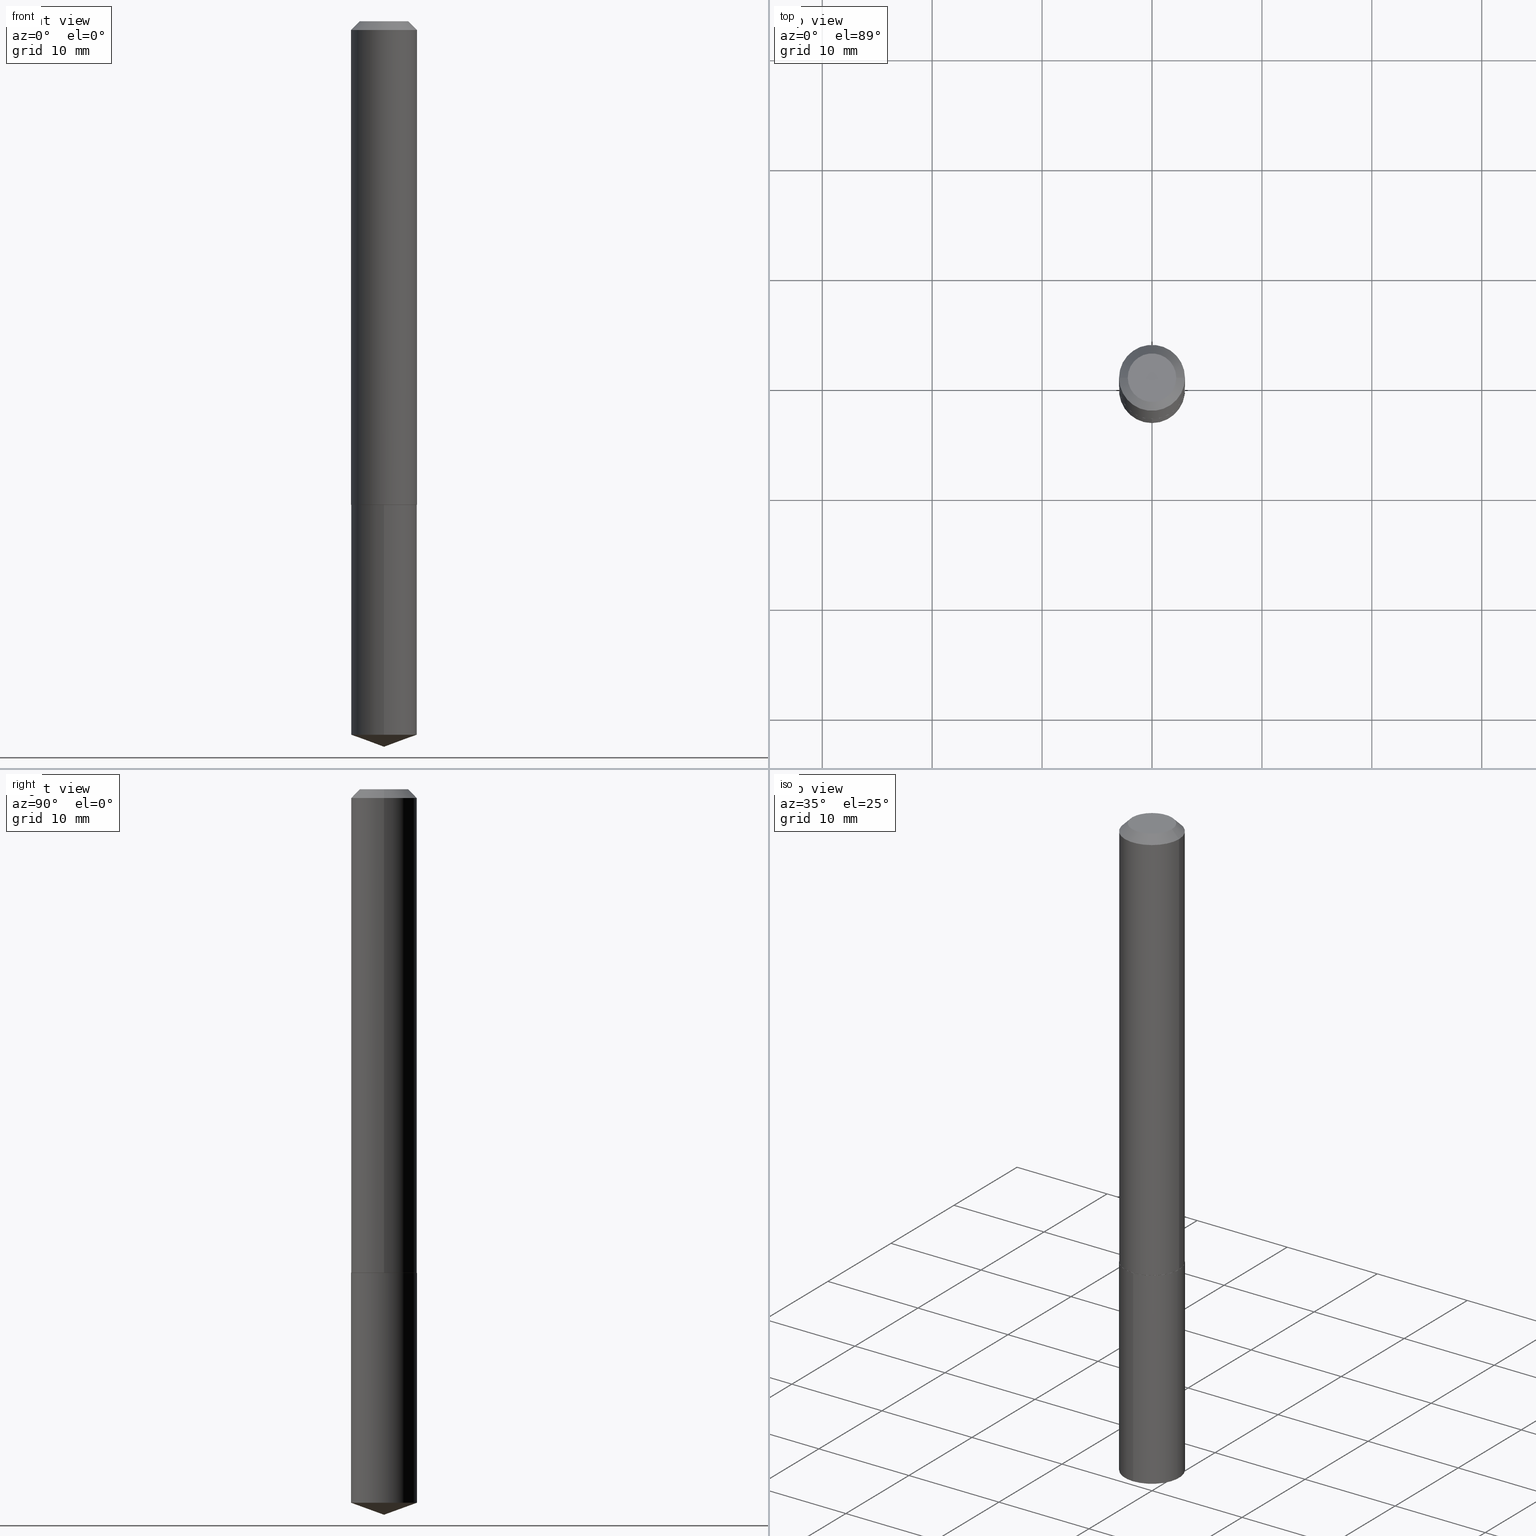
[diagram: canonical four-view strip — front | top / right | iso, engineering-drawing reading convention]
A machine part, canonical four-view strip (front | top / right | iso — engineering-drawing reading convention). The complete STEP part file that produces these views, byte-faithful:
ISO-10303-21;
HEADER;
FILE_DESCRIPTION (( 'STEP AP203' ),
    '1' );
FILE_NAME ('66021.STEP',
    '2024-04-23T12:11:26',
    ( '' ),
    ( '' ),
    'SwSTEP 2.0',
    'SolidWorks 2023',
    '' );
FILE_SCHEMA (( 'CONFIG_CONTROL_DESIGN' ));
ENDSEC;

DATA;
#1 = LINE ( 'NONE', #140, #255 ) ;
#2 = CARTESIAN_POINT ( 'NONE',  ( 6.355996384529325235E-29, -9.069844593061400986E-15, -2.598399999999999821 ) ) ;
#3 = CYLINDRICAL_SURFACE ( 'NONE', #214, 0.1180999999999999966 ) ;
#4 = DIRECTION ( 'NONE',  ( -2.445468806185136597E-29, 3.491481338843145583E-15, 1.000000000000000000 ) ) ;
#5 = AXIS2_PLACEMENT_3D ( 'NONE', #253, #105, #300 ) ;
#6 = CC_DESIGN_APPROVAL ( #198, ( #383 ) ) ;
#7 = ORIENTED_EDGE ( 'NONE', *, *, #218, .T. ) ;
#8 = DIRECTION ( 'NONE',  ( -2.445468806185136877E-29, 3.491481338843145188E-15, 1.000000000000000000 ) ) ;
#9 = DIRECTION ( 'NONE',  ( 2.446119298233268337E-29, -3.490549797206512511E-15, -1.000000000000000000 ) ) ;
#10 = EDGE_CURVE ( 'NONE', #238, #62, #95, .T. ) ;
#11 = VERTEX_POINT ( 'NONE', #246 ) ;
#12 = MECHANICAL_CONTEXT ( 'NONE', #98, 'mechanical' ) ;
#13 = VERTEX_POINT ( 'NONE', #215 ) ;
#14 = APPROVAL_ROLE ( '' ) ;
#15 = DIRECTION ( 'NONE',  ( 1.000000000000000000, -6.982962677686266711E-15, 4.876232708448512900E-29 ) ) ;
#16 = EDGE_CURVE ( 'NONE', #240, #11, #168, .T. ) ;
#17 = PERSON_AND_ORGANIZATION ( #346, #112 ) ;
#18 = ORIENTED_EDGE ( 'NONE', *, *, #121, .T. ) ;
#19 = CARTESIAN_POINT ( 'NONE',  ( -8.246878922347056641E-16, -0.1181000000000060474, -1.732199999999999074 ) ) ;
#20 = CALENDAR_DATE ( 2024, 23, 4 ) ;
#21 = VERTEX_POINT ( 'NONE', #213 ) ;
#22 = EDGE_LOOP ( 'NONE', ( #109, #388, #381, #120 ) ) ;
#23 = ADVANCED_FACE ( 'NONE', ( #296 ), #389, .T. ) ;
#24 = ORIENTED_EDGE ( 'NONE', *, *, #92, .F. ) ;
#25 = FACE_OUTER_BOUND ( 'NONE', #129, .T. ) ;
#26 = AXIS2_PLACEMENT_3D ( 'NONE', #161, #137, #43 ) ;
#27 = EDGE_CURVE ( 'NONE', #78, #241, #337, .T. ) ;
#28 = ORIENTED_EDGE ( 'NONE', *, *, #10, .F. ) ;
#29 = PRODUCT_RELATED_PRODUCT_CATEGORY ( 'detail', '', ( #118 ) ) ;
#30 = CARTESIAN_POINT ( 'NONE',  ( 7.642090019328602662E-31, -1.091087918388490267E-16, -0.03125000000000020817 ) ) ;
#31 = DIRECTION ( 'NONE',  ( 1.000000000000000000, -6.982962677686266711E-15, 0.000000000000000000 ) ) ;
#32 = ADVANCED_BREP_SHAPE_REPRESENTATION ( '66021', ( #130, #373, #147 ), #295 ) ;
#33 = CONICAL_SURFACE ( 'NONE', #207, 0.1181000000000001909, 0.7853981633978751598 ) ;
#34 = APPROVAL_PERSON_ORGANIZATION ( #17, #198, #14 ) ;
#35 = DIRECTION ( 'NONE',  ( -2.446119298233268617E-29, 3.490549797206512511E-15, 1.000000000000000000 ) ) ;
#36 = UNCERTAINTY_MEASURE_WITH_UNIT (LENGTH_MEASURE( 1.000000000000000082E-05 ), #40, 'distance_accuracy_value', 'NONE');
#37 = EDGE_CURVE ( 'NONE', #78, #65, #248, .T. ) ;
#38 = FACE_OUTER_BOUND ( 'NONE', #49, .T. ) ;
#39 = DIRECTION ( 'NONE',  ( 1.000000000000000000, -6.982962677686269077E-15, 0.000000000000000000 ) ) ;
#40 =( CONVERSION_BASED_UNIT ( 'INCH', #250 ) LENGTH_UNIT ( ) NAMED_UNIT ( #110 ) );
#41 = CARTESIAN_POINT ( 'NONE',  ( 7.642090019328602662E-31, -1.091087918388490267E-16, -0.03125000000000020817 ) ) ;
#42 = ORIENTED_EDGE ( 'NONE', *, *, #99, .T. ) ;
#43 = DIRECTION ( 'NONE',  ( -6.982962677686265922E-15, -1.000000000000000000, 3.475157955500679982E-15 ) ) ;
#44 = EDGE_CURVE ( 'NONE', #65, #78, #354, .T. ) ;
#45 = DIRECTION ( 'NONE',  ( 2.438088387897960049E-29, -3.491481338843145188E-15, -1.000000000000000000 ) ) ;
#46 = AXIS2_PLACEMENT_3D ( 'NONE', #126, #209, #15 ) ;
#47 = ORIENTED_EDGE ( 'NONE', *, *, #361, .T. ) ;
#48 = CYLINDRICAL_SURFACE ( 'NONE', #5, 0.1181000000000001077 ) ;
#49 = EDGE_LOOP ( 'NONE', ( #385, #42, #264, #93 ) ) ;
#50 = DIRECTION ( 'NONE',  ( -1.000000000000000000, 6.982962677686266711E-15, 0.000000000000000000 ) ) ;
#51 = ORIENTED_EDGE ( 'NONE', *, *, #106, .T. ) ;
#52 = PERSON_AND_ORGANIZATION ( #346, #112 ) ;
#53 = CIRCLE ( 'NONE', #227, 0.1180999999999999966 ) ;
#54 = AXIS2_PLACEMENT_3D ( 'NONE', #306, #190, #197 ) ;
#55 = EDGE_CURVE ( 'NONE', #13, #78, #312, .T. ) ;
#56 = DIRECTION ( 'NONE',  ( -6.561838499445211896E-15, -0.9396926207859086499, 0.3420201433256677137 ) ) ;
#57 = PRODUCT_DEFINITION_SHAPE ( 'NONE', 'NONE',  #156 ) ;
#58 = EDGE_CURVE ( 'NONE', #62, #21, #386, .T. ) ;
#59 = AXIS2_PLACEMENT_3D ( 'NONE', #30, #272, #50 ) ;
#60 = APPROVAL_PERSON_ORGANIZATION ( #52, #135, #204 ) ;
#61 = DIRECTION ( 'NONE',  ( 2.445468806185136597E-29, -3.491481338843145583E-15, -1.000000000000000000 ) ) ;
#62 = VERTEX_POINT ( 'NONE', #160 ) ;
#63 = DIRECTION ( 'NONE',  ( 0.7071067811868493314, -2.468850131085418026E-15, 0.7071067811862457031 ) ) ;
#64 = AXIS2_PLACEMENT_3D ( 'NONE', #73, #108, #358 ) ;
#65 = VERTEX_POINT ( 'NONE', #387 ) ;
#66 = DIRECTION ( 'NONE',  ( 1.000000000000000000, -6.982962677686266711E-15, 4.876232708448512900E-29 ) ) ;
#67 = AXIS2_PLACEMENT_3D ( 'NONE', #97, #131, #66 ) ;
#68 = DIRECTION ( 'NONE',  ( -2.445468806185136877E-29, 3.491481338843145188E-15, 1.000000000000000000 ) ) ;
#69 = PLANE ( 'NONE',  #220 ) ;
#70 = FACE_OUTER_BOUND ( 'NONE', #364, .T. ) ;
#71 = DIRECTION ( 'NONE',  ( -6.982962677686265922E-15, -1.000000000000000000, 4.626330217890369336E-15 ) ) ;
#72 = ORIENTED_EDGE ( 'NONE', *, *, #172, .F. ) ;
#73 = CARTESIAN_POINT ( 'NONE',  ( 0.000000000000000000, 0.000000000000000000, 0.000000000000000000 ) ) ;
#74 = AXIS2_PLACEMENT_3D ( 'NONE', #169, #4, #31 ) ;
#75 = ORIENTED_EDGE ( 'NONE', *, *, #361, .F. ) ;
#76 = PERSON_AND_ORGANIZATION ( #346, #112 ) ;
#77 = APPROVAL_ROLE ( '' ) ;
#78 = VERTEX_POINT ( 'NONE', #353 ) ;
#79 = DIRECTION ( 'NONE',  ( -2.445468806185136597E-29, 3.491481338843145583E-15, 1.000000000000000000 ) ) ;
#80 = ORIENTED_EDGE ( 'NONE', *, *, #99, .F. ) ;
#81 = DATE_AND_TIME ( #284, #260 ) ;
#82 = VECTOR ( 'NONE', #301, 39.37007874015748143 ) ;
#83 = AXIS2_PLACEMENT_3D ( 'NONE', #193, #100, #305 ) ;
#84 = SHAPE_DEFINITION_REPRESENTATION ( #57, #32 ) ;
#85 = DIRECTION ( 'NONE',  ( -2.446119298233268617E-29, 3.490549797206512117E-15, 1.000000000000000000 ) ) ;
#86 = LINE ( 'NONE', #154, #332 ) ;
#87 = EDGE_CURVE ( 'NONE', #11, #241, #136, .T. ) ;
#88 = COORDINATED_UNIVERSAL_TIME_OFFSET ( 5, 0, .BEHIND. ) ;
#89 = APPROVAL ( #343, 'UNSPECIFIED' ) ;
#90 = CIRCLE ( 'NONE', #242, 0.1180999999999999966 ) ;
#91 = DIRECTION ( 'NONE',  ( -1.000000000000000000, 6.982962677686266711E-15, 0.000000000000000000 ) ) ;
#92 = EDGE_CURVE ( 'NONE', #241, #125, #90, .T. ) ;
#93 = ORIENTED_EDGE ( 'NONE', *, *, #55, .F. ) ;
#94 = CARTESIAN_POINT ( 'NONE',  ( -0.08684999999999999665, 6.610247044764755977E-16, 1.206277097155711909E-18 ) ) ;
#95 = LINE ( 'NONE', #158, #159 ) ;
#96 = CIRCLE ( 'NONE', #54, 0.1180999999999999966 ) ;
#97 = CARTESIAN_POINT ( 'NONE',  ( -2.949913012720688878E-47, 4.211693974208522336E-33, 1.206277097160143859E-18 ) ) ;
#98 = APPLICATION_CONTEXT ( 'configuration controlled 3d designs of mechanical parts and assemblies' ) ;
#99 = EDGE_CURVE ( 'NONE', #347, #65, #86, .T. ) ;
#100 = DIRECTION ( 'NONE',  ( -2.446119298233268617E-29, 3.490549797206512117E-15, 1.000000000000000000 ) ) ;
#101 = DIRECTION ( 'NONE',  ( -2.445468806185136597E-29, 3.491481338843145583E-15, 1.000000000000000000 ) ) ;
#102 = AXIS2_PLACEMENT_3D ( 'NONE', #157, #374, #233 ) ;
#103 = LOCAL_TIME ( 8, 11, 26.00000000000000000, #287 ) ;
#104 = CARTESIAN_POINT ( 'NONE',  ( 4.236041066073892487E-29, -6.047943975144095988E-15, -1.732199999999999518 ) ) ;
#105 = DIRECTION ( 'NONE',  ( -2.445468806185136597E-29, 3.491481338843145583E-15, 1.000000000000000000 ) ) ;
#106 = EDGE_CURVE ( 'NONE', #238, #226, #124, .T. ) ;
#107 = DIRECTION ( 'NONE',  ( -6.982962677686265922E-15, -1.000000000000000000, 3.475157955500679982E-15 ) ) ;
#108 = DIRECTION ( 'NONE',  ( -2.445468806185136597E-29, 3.491481338843145583E-15, 1.000000000000000000 ) ) ;
#109 = ORIENTED_EDGE ( 'NONE', *, *, #218, .F. ) ;
#110 = DIMENSIONAL_EXPONENTS ( 1.000000000000000000, 0.000000000000000000, 0.000000000000000000, 0.000000000000000000, 0.000000000000000000, 0.000000000000000000, 0.000000000000000000 ) ;
#111 = APPROVAL_STATUS ( 'not_yet_approved' ) ;
#112 = ORGANIZATION ( 'UNSPECIFIED', 'UNSPECIFIED', '' ) ;
#113 = VERTEX_POINT ( 'NONE', #19 ) ;
#114 = DATE_AND_TIME ( #199, #290 ) ;
#115 = PERSON_AND_ORGANIZATION ( #346, #112 ) ;
#116 = DIRECTION ( 'NONE',  ( -0.7071067811868493314, 7.493145998871445944E-15, 0.7071067811862457031 ) ) ;
#117 = DATE_AND_TIME ( #20, #275 ) ;
#118 = PRODUCT ( '66021', '66021', '', ( #12 ) ) ;
#119 = VECTOR ( 'NONE', #247, 39.37007874015748143 ) ;
#120 = ORIENTED_EDGE ( 'NONE', *, *, #384, .F. ) ;
#121 = EDGE_CURVE ( 'NONE', #21, #113, #382, .T. ) ;
#122 = PERSON_AND_ORGANIZATION_ROLE ( 'creator' ) ;
#123 = ORIENTED_EDGE ( 'NONE', *, *, #16, .T. ) ;
#124 = LINE ( 'NONE', #340, #254 ) ;
#125 = VERTEX_POINT ( 'NONE', #132 ) ;
#126 = CARTESIAN_POINT ( 'NONE',  ( -2.949913012720688878E-47, 4.211693974208522336E-33, 1.206277097160143859E-18 ) ) ;
#127 = ADVANCED_FACE ( 'NONE', ( #38 ), #33, .T. ) ;
#128 = CARTESIAN_POINT ( 'NONE',  ( 8.391509709327204997E-16, 0.1180999999999939598, -1.732200000000000184 ) ) ;
#129 = EDGE_LOOP ( 'NONE', ( #319, #379 ) ) ;
#130 = MANIFOLD_SOLID_BREP ( 'Body-Move/Copy2[1]', #307 ) ;
#131 = DIRECTION ( 'NONE',  ( -2.445468806185136597E-29, 3.491481338843145583E-15, 1.000000000000000000 ) ) ;
#132 = CARTESIAN_POINT ( 'NONE',  ( -0.1180999999999999966, -2.238502542224082018E-15, -0.03125000000000020817 ) ) ;
#133 = DIRECTION ( 'NONE',  ( 1.000000000000000000, -6.982962677686266711E-15, 0.000000000000000000 ) ) ;
#134 = ORIENTED_EDGE ( 'NONE', *, *, #243, .F. ) ;
#135 = APPROVAL ( #182, 'UNSPECIFIED' ) ;
#136 = LINE ( 'NONE', #164, #82 ) ;
#137 = DIRECTION ( 'NONE',  ( -2.446119298233268617E-29, 3.490549797206512117E-15, 1.000000000000000000 ) ) ;
#138 = DIRECTION ( 'NONE',  ( -2.446119298233268617E-29, 3.490549797206512117E-15, 1.000000000000000000 ) ) ;
#139 = AXIS2_PLACEMENT_3D ( 'NONE', #216, #330, #107 ) ;
#140 = CARTESIAN_POINT ( 'NONE',  ( -8.246878922347056641E-16, -0.1181000000000060474, -1.732199999999999074 ) ) ;
#141 = DESIGN_CONTEXT ( 'detailed design', #355, 'design' ) ;
#142 = CYLINDRICAL_SURFACE ( 'NONE', #83, 0.1180999999999999966 ) ;
#143 = COORDINATED_UNIVERSAL_TIME_OFFSET ( 5, 0, .BEHIND. ) ;
#144 = CARTESIAN_POINT ( 'NONE',  ( 0.1181000000000001077, -8.246878922347488542E-16, 5.758764772215005345E-30 ) ) ;
#145 = AXIS2_PLACEMENT_3D ( 'NONE', #176, #270, #273 ) ;
#146 = APPROVAL_DATE_TIME ( #117, #198 ) ;
#147 = AXIS2_PLACEMENT_3D ( 'NONE', #265, #285, #263 ) ;
#148 = APPLICATION_PROTOCOL_DEFINITION ( 'international standard', 'config_control_design', 1994, #355 ) ;
#149 = DIRECTION ( 'NONE',  ( 1.000000000000000000, -6.982962677686269077E-15, 0.000000000000000000 ) ) ;
#150 = SECURITY_CLASSIFICATION_LEVEL ( 'unclassified' ) ;
#151 = CALENDAR_DATE ( 2024, 23, 4 ) ;
#152 = VECTOR ( 'NONE', #8, 39.37007874015748143 ) ;
#153 = APPROVAL_PERSON_ORGANIZATION ( #234, #89, #77 ) ;
#154 = CARTESIAN_POINT ( 'NONE',  ( -0.1181000000000001909, -5.207047263541994710E-15, -1.731699999999999795 ) ) ;
#155 = EDGE_LOOP ( 'NONE', ( #123, #205 ) ) ;
#156 = PRODUCT_DEFINITION ( 'UNKNOWN', '', #383, #141 ) ;
#157 = CARTESIAN_POINT ( 'NONE',  ( 4.236041066073891926E-29, -6.047943975144094411E-15, -1.732199999999999296 ) ) ;
#158 = CARTESIAN_POINT ( 'NONE',  ( 6.356016145631198819E-29, -9.069844593061400986E-15, -2.598399999999999821 ) ) ;
#159 = VECTOR ( 'NONE', #271, 39.37007874015748854 ) ;
#160 = CARTESIAN_POINT ( 'NONE',  ( 8.391509709327407143E-16, 0.1180999999999910732, -2.555415115333162568 ) ) ;
#161 = CARTESIAN_POINT ( 'NONE',  ( -8.994903977705899431E-28, 1.283517621529767415E-13, 36.77167874015748339 ) ) ;
#162 = CARTESIAN_POINT ( 'NONE',  ( 4.234818331670800246E-29, -6.046198234474674485E-15, -1.731699999999999795 ) ) ;
#163 =( NAMED_UNIT ( * ) PLANE_ANGLE_UNIT ( ) SI_UNIT ( $, .RADIAN. ) );
#164 = CARTESIAN_POINT ( 'NONE',  ( 0.1180999999999999966, -9.193336053756670343E-16, -0.03125000000000020817 ) ) ;
#165 = LINE ( 'NONE', #222, #259 ) ;
#166 = EDGE_CURVE ( 'NONE', #113, #21, #53, .T. ) ;
#167 = DIRECTION ( 'NONE',  ( -2.446119298233268617E-29, 3.490549797206512117E-15, 1.000000000000000000 ) ) ;
#168 = CIRCLE ( 'NONE', #67, 0.08684999999999999665 ) ;
#169 = CARTESIAN_POINT ( 'NONE',  ( 7.642090019328602662E-31, -1.091087918388490267E-16, -0.03125000000000020817 ) ) ;
#170 = DIRECTION ( 'NONE',  ( -6.982962677686265922E-15, -1.000000000000000000, 4.626330217890369336E-15 ) ) ;
#171 = FACE_OUTER_BOUND ( 'NONE', #239, .T. ) ;
#172 = EDGE_CURVE ( 'NONE', #11, #240, #294, .T. ) ;
#173 = PLANE ( 'NONE',  #145 ) ;
#174 = DIRECTION ( 'NONE',  ( -2.445468806185136597E-29, 3.491481338843145583E-15, 1.000000000000000000 ) ) ;
#175 = APPROVAL_DATE_TIME ( #338, #135 ) ;
#176 = CARTESIAN_POINT ( 'NONE',  ( 7.045915830409125999E-29, -2.024043384476385125E-15, -1.732199999999999518 ) ) ;
#177 = ORIENTED_EDGE ( 'NONE', *, *, #243, .T. ) ;
#178 = AXIS2_PLACEMENT_3D ( 'NONE', #314, #180, #149 ) ;
#179 = CALENDAR_DATE ( 2024, 23, 4 ) ;
#180 = DIRECTION ( 'NONE',  ( -2.445468806185136597E-29, 3.491481338843145583E-15, 1.000000000000000000 ) ) ;
#181 = ADVANCED_FACE ( 'NONE', ( #303 ), #274, .T. ) ;
#182 = APPROVAL_STATUS ( 'not_yet_approved' ) ;
#183 = AXIS2_PLACEMENT_3D ( 'NONE', #308, #217, #170 ) ;
#184 = ORIENTED_EDGE ( 'NONE', *, *, #166, .F. ) ;
#185 = ORIENTED_EDGE ( 'NONE', *, *, #339, .T. ) ;
#186 = VECTOR ( 'NONE', #322, 39.37007874015748143 ) ;
#187 = ORIENTED_EDGE ( 'NONE', *, *, #58, .T. ) ;
#188 = CC_DESIGN_PERSON_AND_ORGANIZATION_ASSIGNMENT ( #310, #122, ( #156 ) ) ;
#189 = EDGE_LOOP ( 'NONE', ( #323, #18 ) ) ;
#190 = DIRECTION ( 'NONE',  ( -2.446119298233268617E-29, 3.490549797206512117E-15, 1.000000000000000000 ) ) ;
#191 = DIRECTION ( 'NONE',  ( -1.000000000000000000, 6.982962677686265922E-15, -4.876176775795935793E-29 ) ) ;
#192 = EDGE_CURVE ( 'NONE', #13, #347, #368, .T. ) ;
#193 = CARTESIAN_POINT ( 'NONE',  ( 4.236041066073892487E-29, -6.047943975144095988E-15, -1.732199999999999518 ) ) ;
#194 = CC_DESIGN_PERSON_AND_ORGANIZATION_ASSIGNMENT ( #115, #231, ( #383 ) ) ;
#195 = DIRECTION ( 'NONE',  ( 1.000000000000000000, -6.982962677686269077E-15, 0.000000000000000000 ) ) ;
#196 = ORIENTED_EDGE ( 'NONE', *, *, #121, .F. ) ;
#197 = DIRECTION ( 'NONE',  ( -6.982962677686265922E-15, -1.000000000000000000, 4.626330217890369336E-15 ) ) ;
#198 = APPROVAL ( #111, 'UNSPECIFIED' ) ;
#199 = CALENDAR_DATE ( 2024, 23, 4 ) ;
#200 = DIRECTION ( 'NONE',  ( 1.000000000000000000, -6.982962677686269077E-15, 0.000000000000000000 ) ) ;
#201 = ORIENTED_EDGE ( 'NONE', *, *, #37, .T. ) ;
#202 = CIRCLE ( 'NONE', #341, 0.1176000000000001350 ) ;
#203 = CONICAL_SURFACE ( 'NONE', #369, 0.1181000000000001909, 0.7853981633978751598 ) ;
#204 = APPROVAL_ROLE ( '' ) ;
#205 = ORIENTED_EDGE ( 'NONE', *, *, #172, .T. ) ;
#206 = EDGE_CURVE ( 'NONE', #347, #13, #202, .T. ) ;
#207 = AXIS2_PLACEMENT_3D ( 'NONE', #162, #174, #345 ) ;
#208 = CIRCLE ( 'NONE', #74, 0.1180999999999999966 ) ;
#209 = DIRECTION ( 'NONE',  ( -2.445468806185136597E-29, 3.491481338843145583E-15, 1.000000000000000000 ) ) ;
#210 = CC_DESIGN_PERSON_AND_ORGANIZATION_ASSIGNMENT ( #262, #367, ( #383 ) ) ;
#211 = ORIENTED_EDGE ( 'NONE', *, *, #352, .F. ) ;
#212 = CARTESIAN_POINT ( 'NONE',  ( -0.1180999999999999966, 7.155791003958990633E-16, -0.03125000000000020817 ) ) ;
#213 = CARTESIAN_POINT ( 'NONE',  ( 8.391509709327408129E-16, 0.1180999999999939598, -1.732200000000000184 ) ) ;
#214 = AXIS2_PLACEMENT_3D ( 'NONE', #331, #138, #71 ) ;
#215 = CARTESIAN_POINT ( 'NONE',  ( 0.1176000000000001350, -6.869140386040000455E-15, -1.732199999999999296 ) ) ;
#216 = CARTESIAN_POINT ( 'NONE',  ( -8.994903977705899431E-28, 1.283517621529767415E-13, 36.77167874015748339 ) ) ;
#217 = DIRECTION ( 'NONE',  ( -2.446119298233268617E-29, 3.490549797206512117E-15, 1.000000000000000000 ) ) ;
#218 = EDGE_CURVE ( 'NONE', #65, #125, #165, .T. ) ;
#219 = VECTOR ( 'NONE', #63, 39.37007874015748143 ) ;
#220 = AXIS2_PLACEMENT_3D ( 'NONE', #104, #9, #277 ) ;
#221 = FACE_OUTER_BOUND ( 'NONE', #22, .T. ) ;
#222 = CARTESIAN_POINT ( 'NONE',  ( -0.1181000000000001077, 8.391509709326790846E-16, -5.809262341591049389E-30 ) ) ;
#223 = DIRECTION ( 'NONE',  ( -6.982962677686265922E-15, -1.000000000000000000, 4.626330217890369336E-15 ) ) ;
#224 = FACE_OUTER_BOUND ( 'NONE', #370, .T. ) ;
#225 = CARTESIAN_POINT ( 'NONE',  ( -8.246878922346856468E-16, -0.1181000000000089339, -2.555415115333161236 ) ) ;
#226 = VERTEX_POINT ( 'NONE', #225 ) ;
#227 = AXIS2_PLACEMENT_3D ( 'NONE', #236, #85, #304 ) ;
#228 = ORIENTED_EDGE ( 'NONE', *, *, #10, .T. ) ;
#229 = APPLICATION_PROTOCOL_DEFINITION ( 'international standard', 'config_control_design', 1994, #98 ) ;
#230 = EDGE_LOOP ( 'NONE', ( #292, #47, #289, #196 ) ) ;
#231 = PERSON_AND_ORGANIZATION_ROLE ( 'creator' ) ;
#232 = ADVANCED_FACE ( 'NONE', ( #171 ), #48, .T. ) ;
#233 = DIRECTION ( 'NONE',  ( 1.000000000000000000, -6.982962677686269077E-15, 0.000000000000000000 ) ) ;
#234 = PERSON_AND_ORGANIZATION ( #346, #112 ) ;
#235 = ORIENTED_EDGE ( 'NONE', *, *, #384, .T. ) ;
#236 = CARTESIAN_POINT ( 'NONE',  ( 4.236041066073892487E-29, -6.047943975144095988E-15, -1.732199999999999518 ) ) ;
#237 = DATE_TIME_ROLE ( 'creation_date' ) ;
#238 = VERTEX_POINT ( 'NONE', #2 ) ;
#239 = EDGE_LOOP ( 'NONE', ( #201, #7, #24, #311 ) ) ;
#240 = VERTEX_POINT ( 'NONE', #94 ) ;
#241 = VERTEX_POINT ( 'NONE', #269 ) ;
#242 = AXIS2_PLACEMENT_3D ( 'NONE', #276, #278, #133 ) ;
#243 = EDGE_CURVE ( 'NONE', #240, #125, #351, .T. ) ;
#244 = EDGE_LOOP ( 'NONE', ( #348, #228, #318 ) ) ;
#245 = CC_DESIGN_PERSON_AND_ORGANIZATION_ASSIGNMENT ( #76, #371, ( #315 ) ) ;
#246 = CARTESIAN_POINT ( 'NONE',  ( 0.08684999999999999665, -7.575839282410621061E-16, 1.206277097164912654E-18 ) ) ;
#247 = DIRECTION ( 'NONE',  ( -2.446119298233268617E-29, 3.490549797206512511E-15, 1.000000000000000000 ) ) ;
#248 = CIRCLE ( 'NONE', #362, 0.1181000000000001909 ) ;
#249 = AXIS2_PLACEMENT_3D ( 'NONE', #328, #167, #223 ) ;
#250 = LENGTH_MEASURE_WITH_UNIT ( LENGTH_MEASURE( 0.02539999999999999897 ), #327 );
#251 =( NAMED_UNIT ( * ) SI_UNIT ( $, .STERADIAN. ) SOLID_ANGLE_UNIT ( ) );
#252 = FACE_OUTER_BOUND ( 'NONE', #244, .T. ) ;
#253 = CARTESIAN_POINT ( 'NONE',  ( 0.000000000000000000, 0.000000000000000000, 0.000000000000000000 ) ) ;
#254 = VECTOR ( 'NONE', #56, 39.37007874015748143 ) ;
#255 = VECTOR ( 'NONE', #35, 39.37007874015748143 ) ;
#256 = FACE_OUTER_BOUND ( 'NONE', #321, .T. ) ;
#257 = PLANE ( 'NONE',  #342 ) ;
#258 = CARTESIAN_POINT ( 'NONE',  ( 4.234818331670800246E-29, -6.046198234474674485E-15, -1.731699999999999795 ) ) ;
#259 = VECTOR ( 'NONE', #68, 39.37007874015748143 ) ;
#260 = LOCAL_TIME ( 8, 11, 26.00000000000000000, #88 ) ;
#261 = ORIENTED_EDGE ( 'NONE', *, *, #16, .F. ) ;
#262 = PERSON_AND_ORGANIZATION ( #346, #112 ) ;
#263 = DIRECTION ( 'NONE',  ( 1.000000000000000000, 0.000000000000000000, 0.000000000000000000 ) ) ;
#264 = ORIENTED_EDGE ( 'NONE', *, *, #37, .F. ) ;
#265 = CARTESIAN_POINT ( 'NONE',  ( 0.000000000000000000, 0.000000000000000000, 0.000000000000000000 ) ) ;
#266 = CONICAL_SURFACE ( 'NONE', #139, 108.1684023407347155, 1.221730476396035270 ) ;
#267 = ORIENTED_EDGE ( 'NONE', *, *, #206, .T. ) ;
#268 = ADVANCED_FACE ( 'NONE', ( #25 ), #173, .F. ) ;
#269 = CARTESIAN_POINT ( 'NONE',  ( 0.1180999999999999966, -9.337966840735971660E-16, -0.03125000000000020817 ) ) ;
#270 = DIRECTION ( 'NONE',  ( -2.438088387897960049E-29, 3.491481338843145188E-15, 1.000000000000000000 ) ) ;
#271 = DIRECTION ( 'NONE',  ( 6.676917655467978384E-15, 0.9396926207859110924, 0.3420201433256611079 ) ) ;
#272 = DIRECTION ( 'NONE',  ( 2.445468806185136597E-29, -3.491481338843145583E-15, -1.000000000000000000 ) ) ;
#273 = DIRECTION ( 'NONE',  ( 1.000000000000000000, -6.982962677686265922E-15, 4.876176775795935793E-29 ) ) ;
#274 = CONICAL_SURFACE ( 'NONE', #320, 0.1180999999999999966, 0.7853981633974450594 ) ;
#275 = LOCAL_TIME ( 8, 11, 26.00000000000000000, #143 ) ;
#276 = CARTESIAN_POINT ( 'NONE',  ( 7.642090019328602662E-31, -1.091087918388490267E-16, -0.03125000000000020817 ) ) ;
#277 = DIRECTION ( 'NONE',  ( 6.982962677686265922E-15, 1.000000000000000000, -3.490549797206512511E-15 ) ) ;
#278 = DIRECTION ( 'NONE',  ( -2.445468806185136597E-29, 3.491481338843145583E-15, 1.000000000000000000 ) ) ;
#279 = FACE_OUTER_BOUND ( 'NONE', #230, .T. ) ;
#280 = CARTESIAN_POINT ( 'NONE',  ( 4.236041066073891926E-29, -6.047943975144094411E-15, -1.732199999999999296 ) ) ;
#281 = CARTESIAN_POINT ( 'NONE',  ( -0.1176000000000001350, -5.209696490716105911E-15, -1.732199999999999296 ) ) ;
#282 = COORDINATED_UNIVERSAL_TIME_OFFSET ( 5, 0, .BEHIND. ) ;
#283 = ADVANCED_FACE ( 'NONE', ( #221 ), #359, .T. ) ;
#284 = CALENDAR_DATE ( 2024, 23, 4 ) ;
#285 = DIRECTION ( 'NONE',  ( 0.000000000000000000, 0.000000000000000000, 1.000000000000000000 ) ) ;
#286 = ORIENTED_EDGE ( 'NONE', *, *, #92, .T. ) ;
#287 = COORDINATED_UNIVERSAL_TIME_OFFSET ( 5, 0, .BEHIND. ) ;
#288 = ADVANCED_FACE ( 'NONE', ( #224 ), #376, .T. ) ;
#289 = ORIENTED_EDGE ( 'NONE', *, *, #352, .T. ) ;
#290 = LOCAL_TIME ( 8, 11, 26.00000000000000000, #375 ) ;
#291 = CC_DESIGN_DATE_AND_TIME_ASSIGNMENT ( #335, #237, ( #156 ) ) ;
#292 = ORIENTED_EDGE ( 'NONE', *, *, #58, .F. ) ;
#293 = ADVANCED_FACE ( 'NONE', ( #70 ), #3, .T. ) ;
#294 = CIRCLE ( 'NONE', #46, 0.08684999999999999665 ) ;
#295 =( GEOMETRIC_REPRESENTATION_CONTEXT ( 3 ) GLOBAL_UNCERTAINTY_ASSIGNED_CONTEXT ( ( #36 ) ) GLOBAL_UNIT_ASSIGNED_CONTEXT ( ( #40, #163, #251 ) ) REPRESENTATION_CONTEXT ( 'NONE', 'WORKASPACE' ) );
#296 = FACE_OUTER_BOUND ( 'NONE', #313, .T. ) ;
#297 = ADVANCED_FACE ( 'NONE', ( #252 ), #266, .T. ) ;
#298 = ORIENTED_EDGE ( 'NONE', *, *, #87, .F. ) ;
#299 = CARTESIAN_POINT ( 'NONE',  ( -1.474956506360344439E-47, 2.105846987104261168E-33, 6.031385485800719294E-19 ) ) ;
#300 = DIRECTION ( 'NONE',  ( 1.000000000000000000, -6.982962677686266711E-15, 4.876176775795935793E-29 ) ) ;
#301 = DIRECTION ( 'NONE',  ( 0.7071067811865452413, -7.319954787623248157E-15, -0.7071067811865497932 ) ) ;
#302 = CARTESIAN_POINT ( 'NONE',  ( 4.234818331670800246E-29, -6.046198234474674485E-15, -1.731699999999999795 ) ) ;
#303 = FACE_OUTER_BOUND ( 'NONE', #316, .T. ) ;
#304 = DIRECTION ( 'NONE',  ( -6.982962677686265922E-15, -1.000000000000000000, 4.626330217890369336E-15 ) ) ;
#305 = DIRECTION ( 'NONE',  ( -6.982962677686265922E-15, -1.000000000000000000, 4.626330217890369336E-15 ) ) ;
#306 = CARTESIAN_POINT ( 'NONE',  ( 6.249723446287668181E-29, -8.921417329027599768E-15, -2.555415115333162124 ) ) ;
#307 = CLOSED_SHELL ( 'NONE', ( #293, #297, #288, #366, #329 ) ) ;
#308 = CARTESIAN_POINT ( 'NONE',  ( 4.236041066073892487E-29, -6.047943975144095988E-15, -1.732199999999999518 ) ) ;
#309 = CC_DESIGN_SECURITY_CLASSIFICATION ( #315, ( #383 ) ) ;
#310 = PERSON_AND_ORGANIZATION ( #346, #112 ) ;
#311 = ORIENTED_EDGE ( 'NONE', *, *, #27, .F. ) ;
#312 = LINE ( 'NONE', #326, #219 ) ;
#313 = EDGE_LOOP ( 'NONE', ( #72, #344, #286, #134 ) ) ;
#314 = CARTESIAN_POINT ( 'NONE',  ( 4.234818331670800246E-29, -6.046198234474674485E-15, -1.731699999999999795 ) ) ;
#315 = SECURITY_CLASSIFICATION ( '', '', #150 ) ;
#316 = EDGE_LOOP ( 'NONE', ( #298, #261, #177, #235 ) ) ;
#317 = APPROVAL_DATE_TIME ( #81, #89 ) ;
#318 = ORIENTED_EDGE ( 'NONE', *, *, #339, .F. ) ;
#319 = ORIENTED_EDGE ( 'NONE', *, *, #192, .F. ) ;
#320 = AXIS2_PLACEMENT_3D ( 'NONE', #41, #61, #91 ) ;
#321 = EDGE_LOOP ( 'NONE', ( #80, #267, #356, #325 ) ) ;
#322 = DIRECTION ( 'NONE',  ( -0.7071067811865452413, 2.468850131082233000E-15, -0.7071067811865497932 ) ) ;
#323 = ORIENTED_EDGE ( 'NONE', *, *, #166, .T. ) ;
#324 = CC_DESIGN_PERSON_AND_ORGANIZATION_ASSIGNMENT ( #378, #372, ( #118 ) ) ;
#325 = ORIENTED_EDGE ( 'NONE', *, *, #44, .F. ) ;
#326 = CARTESIAN_POINT ( 'NONE',  ( 0.1181000000000001909, -6.870886126709424325E-15, -1.731699999999999795 ) ) ;
#327 =( LENGTH_UNIT ( ) NAMED_UNIT ( * ) SI_UNIT ( $, .METRE. ) );
#328 = CARTESIAN_POINT ( 'NONE',  ( 6.249723446287668181E-29, -8.921417329027599768E-15, -2.555415115333162124 ) ) ;
#329 = ADVANCED_FACE ( 'NONE', ( #360 ), #69, .F. ) ;
#330 = DIRECTION ( 'NONE',  ( -2.446119298233268617E-29, 3.490549797206512117E-15, 1.000000000000000000 ) ) ;
#331 = CARTESIAN_POINT ( 'NONE',  ( 4.236041066073892487E-29, -6.047943975144095988E-15, -1.732199999999999518 ) ) ;
#332 = VECTOR ( 'NONE', #116, 39.37007874015748143 ) ;
#333 = CC_DESIGN_APPROVAL ( #89, ( #315 ) ) ;
#334 = ADVANCED_FACE ( 'NONE', ( #256 ), #203, .T. ) ;
#335 = DATE_AND_TIME ( #151, #350 ) ;
#336 = DATE_TIME_ROLE ( 'classification_date' ) ;
#337 = LINE ( 'NONE', #144, #152 ) ;
#338 = DATE_AND_TIME ( #179, #103 ) ;
#339 = EDGE_CURVE ( 'NONE', #226, #62, #390, .T. ) ;
#340 = CARTESIAN_POINT ( 'NONE',  ( 6.353742819877775549E-29, -9.073071825907353531E-15, -2.598399999999999821 ) ) ;
#341 = AXIS2_PLACEMENT_3D ( 'NONE', #280, #101, #39 ) ;
#342 = AXIS2_PLACEMENT_3D ( 'NONE', #299, #45, #191 ) ;
#343 = APPROVAL_STATUS ( 'not_yet_approved' ) ;
#344 = ORIENTED_EDGE ( 'NONE', *, *, #87, .T. ) ;
#345 = DIRECTION ( 'NONE',  ( 1.000000000000000000, -6.982962677686269077E-15, 0.000000000000000000 ) ) ;
#346 = PERSON ( 'UNSPECIFIED', 'UNSPECIFIED', 'UNSPECIFIED', ('UNSPECIFIED'), ('UNSPECIFIED'), ('UNSPECIFIED') ) ;
#347 = VERTEX_POINT ( 'NONE', #281 ) ;
#348 = ORIENTED_EDGE ( 'NONE', *, *, #106, .F. ) ;
#349 = CLOSED_SHELL ( 'NONE', ( #23, #232, #127, #268, #334, #283, #181, #380 ) ) ;
#350 = LOCAL_TIME ( 8, 11, 26.00000000000000000, #282 ) ;
#351 = LINE ( 'NONE', #212, #186 ) ;
#352 = EDGE_CURVE ( 'NONE', #226, #113, #1, .T. ) ;
#353 = CARTESIAN_POINT ( 'NONE',  ( 0.1181000000000001909, -6.870886126709424325E-15, -1.731699999999999795 ) ) ;
#354 = CIRCLE ( 'NONE', #178, 0.1181000000000001909 ) ;
#355 = APPLICATION_CONTEXT ( 'configuration controlled 3d designs of mechanical parts and assemblies' ) ;
#356 = ORIENTED_EDGE ( 'NONE', *, *, #55, .T. ) ;
#357 = CC_DESIGN_DATE_AND_TIME_ASSIGNMENT ( #114, #336, ( #315 ) ) ;
#358 = DIRECTION ( 'NONE',  ( 1.000000000000000000, -6.982962677686266711E-15, 4.876176775795935793E-29 ) ) ;
#359 = CYLINDRICAL_SURFACE ( 'NONE', #64, 0.1181000000000001077 ) ;
#360 = FACE_OUTER_BOUND ( 'NONE', #189, .T. ) ;
#361 = EDGE_CURVE ( 'NONE', #62, #226, #96, .T. ) ;
#362 = AXIS2_PLACEMENT_3D ( 'NONE', #258, #79, #200 ) ;
#363 = FACE_OUTER_BOUND ( 'NONE', #155, .T. ) ;
#364 = EDGE_LOOP ( 'NONE', ( #185, #187, #184, #211 ) ) ;
#365 = DIRECTION ( 'NONE',  ( -2.445468806185136597E-29, 3.491481338843145583E-15, 1.000000000000000000 ) ) ;
#366 = ADVANCED_FACE ( 'NONE', ( #279 ), #142, .T. ) ;
#367 = PERSON_AND_ORGANIZATION_ROLE ( 'design_supplier' ) ;
#368 = CIRCLE ( 'NONE', #102, 0.1176000000000001350 ) ;
#369 = AXIS2_PLACEMENT_3D ( 'NONE', #302, #365, #195 ) ;
#370 = EDGE_LOOP ( 'NONE', ( #28, #51, #75 ) ) ;
#371 = PERSON_AND_ORGANIZATION_ROLE ( 'classification_officer' ) ;
#372 = PERSON_AND_ORGANIZATION_ROLE ( 'design_owner' ) ;
#373 = MANIFOLD_SOLID_BREP ( 'Body-Move/Copy2[2]', #349 ) ;
#374 = DIRECTION ( 'NONE',  ( -2.445468806185136597E-29, 3.491481338843145583E-15, 1.000000000000000000 ) ) ;
#375 = COORDINATED_UNIVERSAL_TIME_OFFSET ( 5, 0, .BEHIND. ) ;
#376 = CONICAL_SURFACE ( 'NONE', #26, 108.1684023407347155, 1.221730476396035270 ) ;
#377 = CC_DESIGN_APPROVAL ( #135, ( #156 ) ) ;
#378 = PERSON_AND_ORGANIZATION ( #346, #112 ) ;
#379 = ORIENTED_EDGE ( 'NONE', *, *, #206, .F. ) ;
#380 = ADVANCED_FACE ( 'NONE', ( #363 ), #257, .F. ) ;
#381 = ORIENTED_EDGE ( 'NONE', *, *, #27, .T. ) ;
#382 = CIRCLE ( 'NONE', #183, 0.1180999999999999966 ) ;
#383 = PRODUCT_DEFINITION_FORMATION_WITH_SPECIFIED_SOURCE ( 'ANY', '', #118, .NOT_KNOWN. ) ;
#384 = EDGE_CURVE ( 'NONE', #125, #241, #208, .T. ) ;
#385 = ORIENTED_EDGE ( 'NONE', *, *, #192, .T. ) ;
#386 = LINE ( 'NONE', #128, #119 ) ;
#387 = CARTESIAN_POINT ( 'NONE',  ( -0.1181000000000001909, -5.207047263541994710E-15, -1.731699999999999795 ) ) ;
#388 = ORIENTED_EDGE ( 'NONE', *, *, #44, .T. ) ;
#389 = CONICAL_SURFACE ( 'NONE', #59, 0.1180999999999999966, 0.7853981633974450594 ) ;
#390 = CIRCLE ( 'NONE', #249, 0.1180999999999999966 ) ;
ENDSEC;
END-ISO-10303-21;
